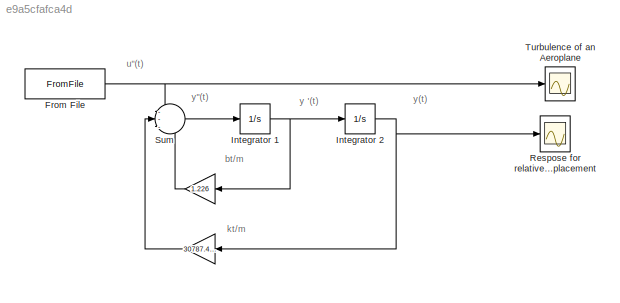
MODEL slx_e9a5cfafca4d
KIND model
CONFIG AbsTol = auto
CONFIG FixedStep = auto
CONFIG MaxStep = auto
CONFIG MinStep = auto
CONFIG RelTol = 1e-3
CONFIG SampleTimeConstraint = Unconstrained
CONFIG Solver = VariableStepAuto
CONFIG SolverMode = Auto
CONFIG SolverName = VariableStepAuto
CONFIG StartTime = 0.0
CONFIG StopTime = 50
BLOCK [Gain]  
  Gain = 1.226
  OutDataTypeStr = Inherit: Inherit via internal rule
  ParamDataTypeStr = Inherit: Inherit via internal rule
  SaturateOnIntegerOverflow = off
BLOCK [Gain]   
  Gain = 30787.459
  OutDataTypeStr = Inherit: Inherit via internal rule
  ParamDataTypeStr = Inherit: Inherit via internal rule
  SaturateOnIntegerOverflow = off
BLOCK [FromFile] From File
  FileName = Input_signal.mat
  SampleTime = 0
BLOCK [Integrator] Integrator 1
  Ports = [1, 1]
BLOCK [Integrator] Integrator 2 
  Ports = [1, 1]
BLOCK [Scope] Respose for relative displacement
  Ports = [1]
  ScopeSpecificationString = Simulink.scopes.TimeScopeBlockCfg('CurrentConfiguration', extmgr.ConfigurationSet(extmgr.Configuration('Core','General UI',true,'FigureColor',[0.941176470588235 0.941176470588235 0.941176470588235]),extmgr.Configuration('Core','Source UI',true),extmgr.Configuration('Sources','WiredSimulink',true,'SampleTime','0.01','DataLoggingVariableName','unddampe','DataLoggingSaveFormat','Array','DataLogging',...<+1673ch>
BLOCK [Sum] Sum
  IconShape = round
  InputSameDT = off
  Inputs = ---
  OutDataTypeStr = Inherit: Inherit via internal rule
  Ports = [3, 1]
  SaturateOnIntegerOverflow = off
BLOCK [Scope] Turbulence of an Aeroplane
  Ports = [1]
  ScopeSpecificationString = Simulink.scopes.TimeScopeBlockCfg('CurrentConfiguration', extmgr.ConfigurationSet(extmgr.Configuration('Core','General UI',true,'FigureColor',[0.941176470588235 0.941176470588235 0.941176470588235]),extmgr.Configuration('Core','Source UI',true),extmgr.Configuration('Sources','WiredSimulink',true,'SampleTime','0.01'),extmgr.Configuration('Visuals','Time Domain',true,'SerializedDisplays',{struct('Mi...<+1591ch>
ANNOTATION (root): bt/m
ANNOTATION (root): kt/m
ANNOTATION (root): u"(t)
ANNOTATION (root): y '(t)
ANNOTATION (root): y"(t)
ANNOTATION (root): y(t)
LINE   :1 -> Sum:2
LINE  :1 -> Sum:3
NET From File:1 -> Sum:1, Turbulence of an Aeroplane:1
NET Integrator 1:1 ->  :1, Integrator 2 :1
NET Integrator 2 :1 ->   :1, Respose for relative displacement:1
LINE Sum:1 -> Integrator 1:1
note: NET lines group one-source signal fan-out (src -> all destinations, sorted); 1:1 wires keep LINE
